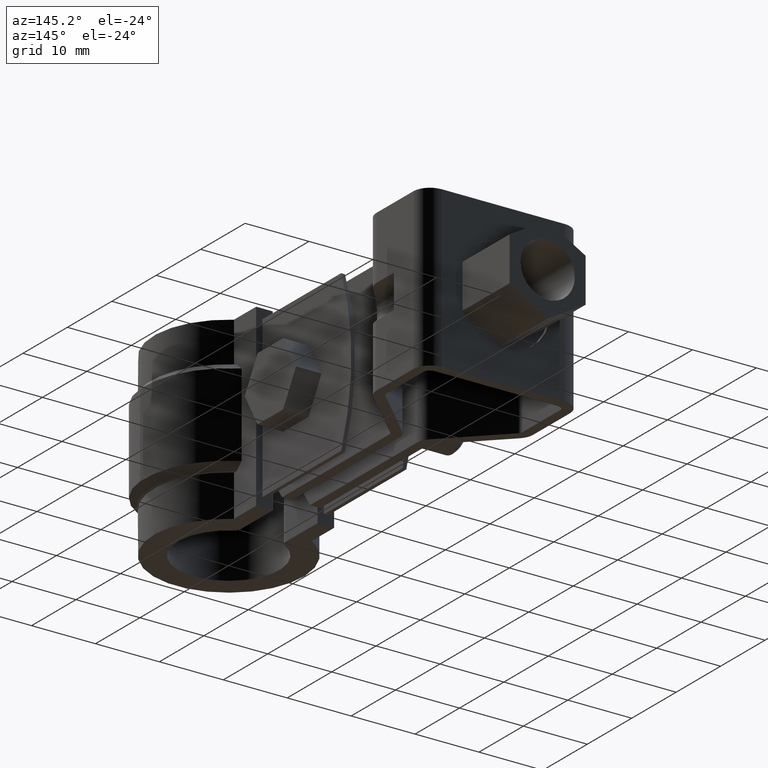
[diagram: clean part render]
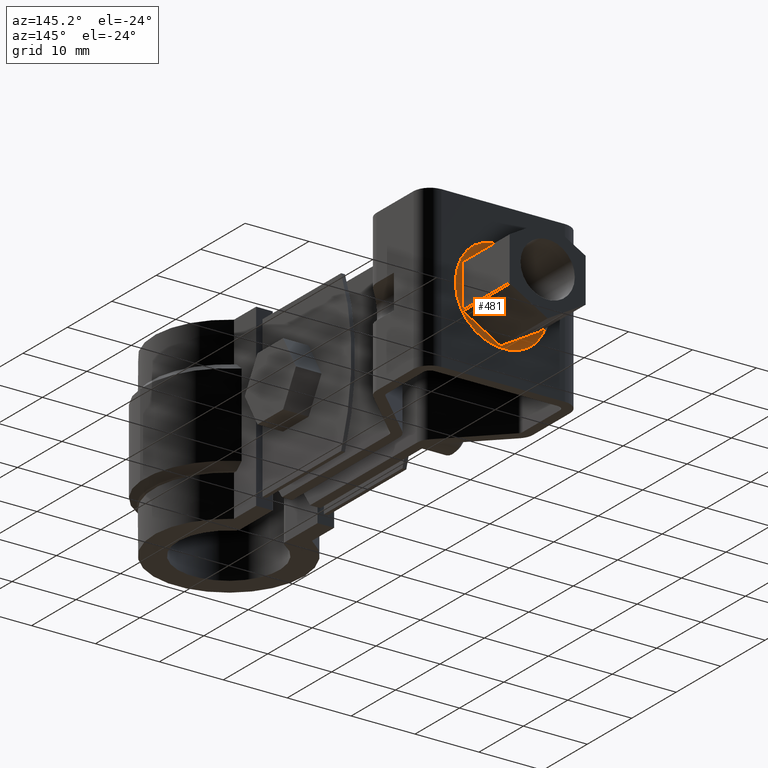
[diagram: same view with one face highlighted and labeled with its STEP entity id]
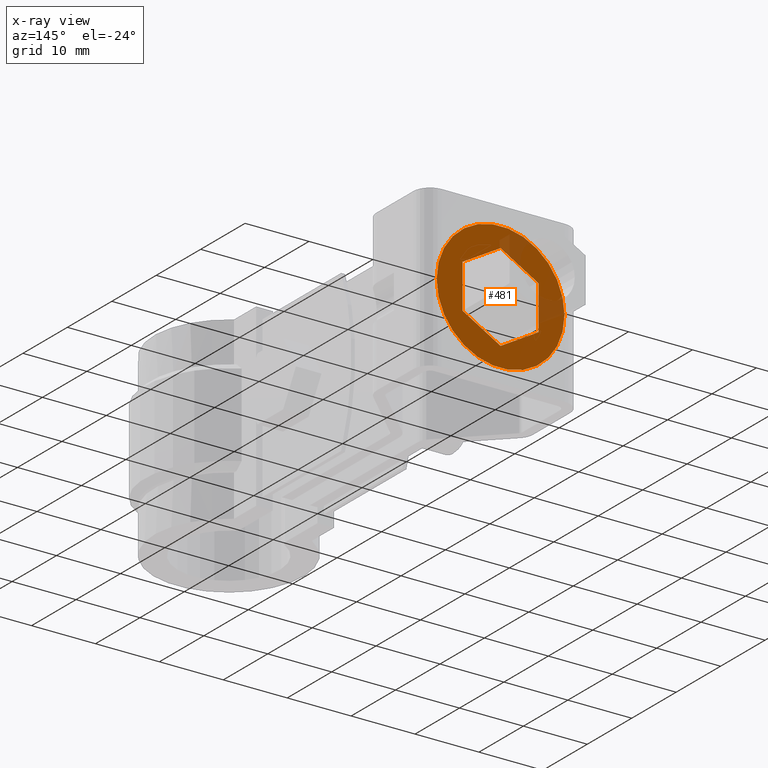
[diagram: x-ray of the same camera — body ghosted, the highlighted face saturated]
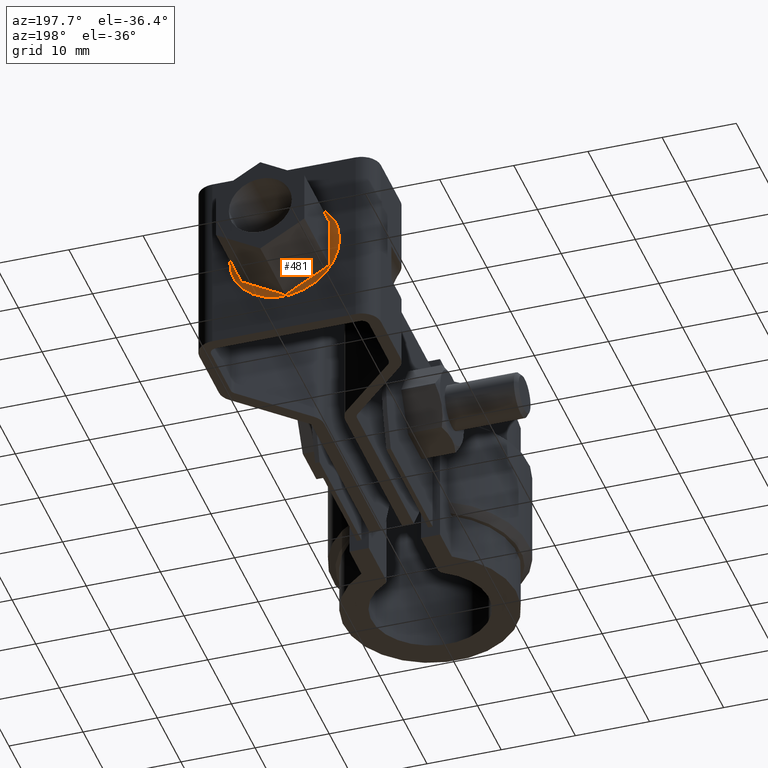
[diagram: same view with one face highlighted and labeled with its STEP entity id]
A machine part, auxiliary view. The second image highlights one B-rep face of the part: STEP entity #481.
The next image is the same camera in x-ray: the body ghosted, the highlighted face saturated — about 12% of this face is hidden behind the body in this view.
A second angle (auxiliary view) of the same face is appended — the face is thin or edge-on in the first view.
In plain terms, the highlighted planar face has unit normal (-0, 1, -0).
Its self-contained STEP definition (entity closure, byte-faithful):
#481 = ADVANCED_FACE( '', ( #875, #876 ), #877, .T. );
#875 = FACE_OUTER_BOUND( '', #1901, .T. );
#876 = FACE_BOUND( '', #1902, .T. );
#877 = PLANE( '', #1903 );
#1901 = EDGE_LOOP( '', ( #4376 ) );
#1902 = EDGE_LOOP( '', ( #4377, #4378, #4379, #4380, #4381, #4382 ) );
#1903 = AXIS2_PLACEMENT_3D( '', #4383, #4384, #4385 );
#4376 = ORIENTED_EDGE( '', *, *, #5186, .T. );
#4377 = ORIENTED_EDGE( '', *, *, #5182, .F. );
#4378 = ORIENTED_EDGE( '', *, *, #5187, .F. );
#4379 = ORIENTED_EDGE( '', *, *, #5188, .F. );
#4380 = ORIENTED_EDGE( '', *, *, #5189, .F. );
#4381 = ORIENTED_EDGE( '', *, *, #5190, .F. );
#4382 = ORIENTED_EDGE( '', *, *, #5191, .F. );
#4383 = CARTESIAN_POINT( '', ( -1.08698352288560E-012, 61.1954761009211, -12.5000000007210 ) );
#4384 = DIRECTION( '', ( -1.50571936274857E-013, 1.00000000000000, -5.16559017782484E-012 ) );
#4385 = DIRECTION( '', ( 1.00000000000000, 1.50571936275955E-013, 2.12701571834269E-013 ) );
#5182 = EDGE_CURVE( '', #6091, #6092, #6093, .T. );
#5186 = EDGE_CURVE( '', #6099, #6099, #6100, .T. );
#5187 = EDGE_CURVE( '', #6101, #6091, #6102, .T. );
#5188 = EDGE_CURVE( '', #6103, #6101, #6104, .T. );
#5189 = EDGE_CURVE( '', #6105, #6103, #6106, .T. );
#5190 = EDGE_CURVE( '', #6107, #6105, #6108, .T. );
#5191 = EDGE_CURVE( '', #6092, #6107, #6109, .T. );
#6091 = VERTEX_POINT( '', #8679 );
#6092 = VERTEX_POINT( '', #8680 );
#6093 = LINE( '', #8681, #8682 );
#6099 = VERTEX_POINT( '', #8691 );
#6100 = CIRCLE( '', #8692, 10.0000000000000 );
#6101 = VERTEX_POINT( '', #8693 );
#6102 = LINE( '', #8694, #8695 );
#6103 = VERTEX_POINT( '', #8696 );
#6104 = LINE( '', #8697, #8698 );
#6105 = VERTEX_POINT( '', #8699 );
#6106 = LINE( '', #8700, #8701 );
#6107 = VERTEX_POINT( '', #8702 );
#6108 = LINE( '', #8703, #8704 );
#6109 = LINE( '', #8705, #8706 );
#8679 = CARTESIAN_POINT( '', ( 5.94999999999818, 61.1954761009397, -9.06476589904150 ) );
#8680 = CARTESIAN_POINT( '', ( 5.94999999999965, 61.1954761009042, -15.9352341023981 ) );
#8681 = CARTESIAN_POINT( '', ( 5.94999999999818, 61.1954761009397, -9.06476589904150 ) );
#8682 = VECTOR( '', #9577, 1000.00000000000 );
#8691 = CARTESIAN_POINT( '', ( 9.99999999999891, 61.1954761009226, -12.5000000007189 ) );
#8692 = AXIS2_PLACEMENT_3D( '', #9581, #9582, #9583 );
#8693 = CARTESIAN_POINT( '', ( -2.55441444114817E-012, 61.1954761009566, -5.62953179736449 ) );
#8694 = CARTESIAN_POINT( '', ( -2.54834290898225E-012, 61.1954761009566, -5.62953179736449 ) );
#8695 = VECTOR( '', #9584, 1000.00000000000 );
#8696 = CARTESIAN_POINT( '', ( -5.95000000000182, 61.1954761009379, -9.06476589904404 ) );
#8697 = CARTESIAN_POINT( '', ( -5.95000000000182, 61.1954761009379, -9.06476589904402 ) );
#8698 = VECTOR( '', #9585, 1000.00000000000 );
#8699 = CARTESIAN_POINT( '', ( -5.95000000000035, 61.1954761009024, -15.9352341024006 ) );
#8700 = CARTESIAN_POINT( '', ( -5.95000000000036, 61.1954761009024, -15.9352341024006 ) );
#8701 = VECTOR( '', #9586, 1000.00000000000 );
#8702 = CARTESIAN_POINT( '', ( 3.75243224949035E-013, 61.1954761008856, -19.3704682040776 ) );
#8703 = CARTESIAN_POINT( '', ( 3.76977948425011E-013, 61.1954761008856, -19.3704682040776 ) );
#8704 = VECTOR( '', #9587, 1000.00000000000 );
#8705 = CARTESIAN_POINT( '', ( 5.94999999999965, 61.1954761009042, -15.9352341023981 ) );
#8706 = VECTOR( '', #9588, 1000.00000000000 );
#9577 = DIRECTION( '', ( 2.13090149893665E-013, -5.16559017782481E-012, -1.00000000000000 ) );
#9581 = CARTESIAN_POINT( '', ( -1.08698352288560E-012, 61.1954761009211, -12.5000000007210 ) );
#9582 = DIRECTION( '', ( -1.50571936274857E-013, 1.00000000000000, -5.16559017782484E-012 ) );
#9583 = DIRECTION( '', ( 1.00000000000000, 1.50571936275955E-013, 2.12701571834269E-013 ) );
#9584 = DIRECTION( '', ( 0.866025403784545, -2.45239596700041E-012, -0.499999999999816 ) );
#9585 = DIRECTION( '', ( 0.866025403784332, 2.71319421082439E-012, 0.500000000000184 ) );
#9586 = DIRECTION( '', ( -2.12646060683815E-013, 5.16559017782481E-012, 1.00000000000000 ) );
#9587 = DIRECTION( '', ( -0.866025403784545, 2.45239596700041E-012, 0.499999999999816 ) );
#9588 = DIRECTION( '', ( -0.866025403784332, -2.71319421082439E-012, -0.500000000000184 ) );